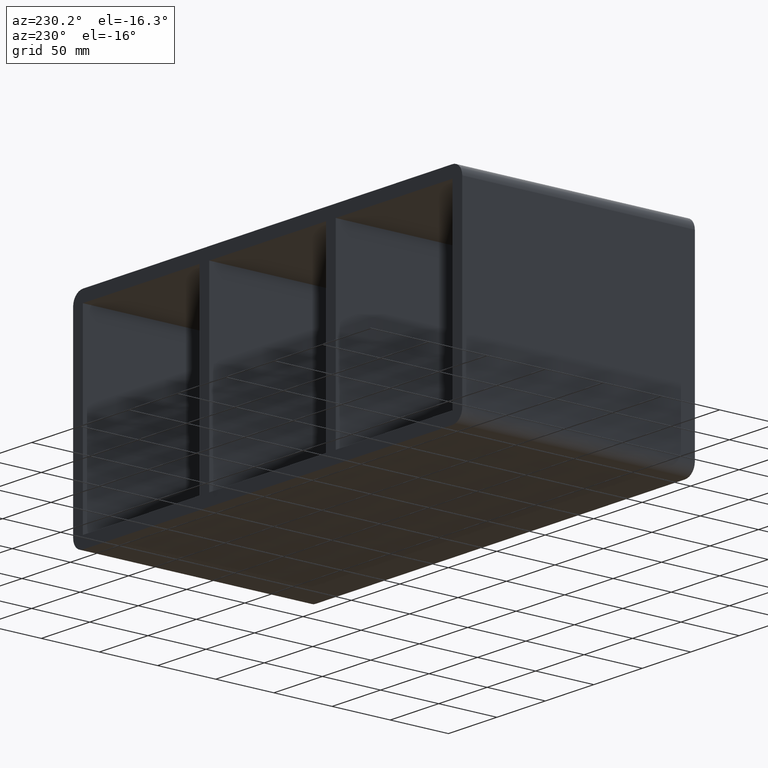
[diagram: clean part render]
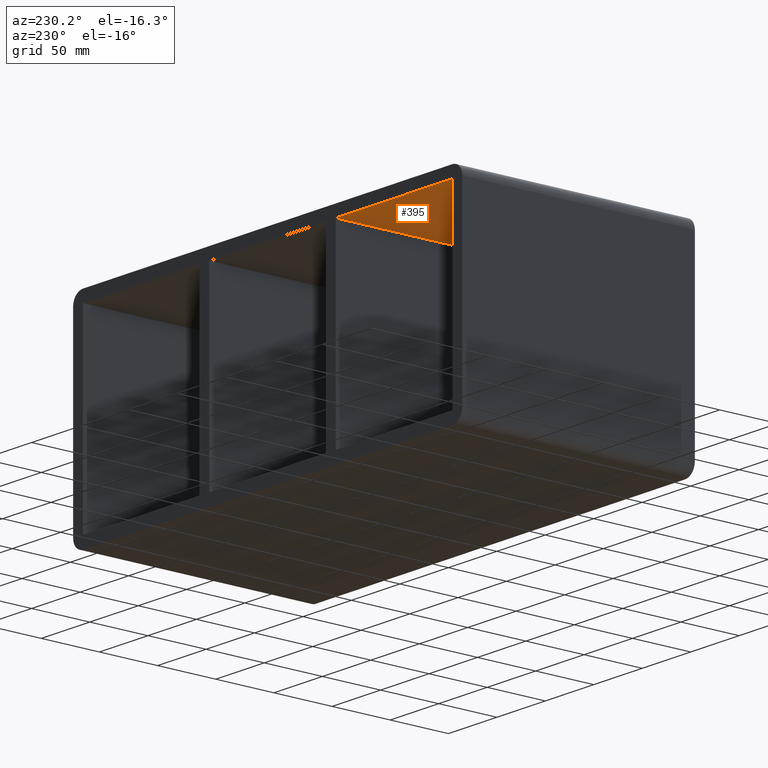
[diagram: same view with one face highlighted and labeled with its STEP entity id]
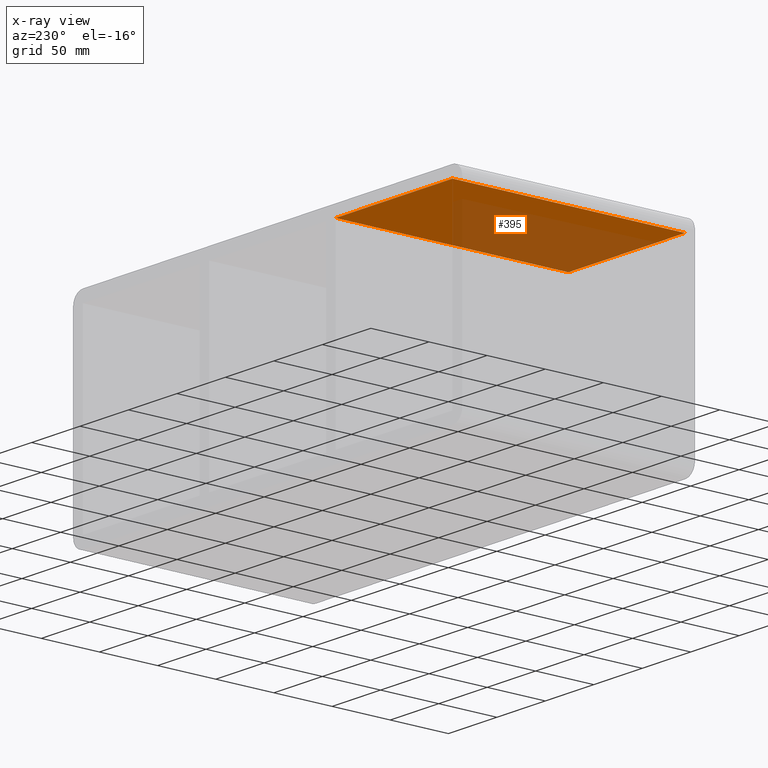
[diagram: x-ray of the same camera — body ghosted, the highlighted face saturated]
A machine part, auxiliary view. The second image highlights one B-rep face of the part: STEP entity #395.
The next image is the same camera in x-ray: the body ghosted, the highlighted face saturated — about 51% of this face is hidden behind the body in this view.
In plain terms, the highlighted planar face has unit normal (0, 0, 1).
Its self-contained STEP definition (entity closure, byte-faithful):
#279=CARTESIAN_POINT('',(-70.250000000001251,-3.0,79.750000000000028));
#280=VERTEX_POINT('',#279);
#287=CARTESIAN_POINT('',(-70.250000000001251,197.0,79.750000000000028));
#288=VERTEX_POINT('',#287);
#289=CARTESIAN_POINT('',(-70.250000000001251,196.99999999999997,79.750000000000028));
#290=DIRECTION('',(0.0,-1.0,0.0));
#291=VECTOR('',#290,199.99999999999997);
#292=LINE('',#289,#291);
#293=EDGE_CURVE('',#288,#280,#292,.T.);
#365=CARTESIAN_POINT('',(-190.75000000000003,0.0,79.750000000000028));
#366=DIRECTION('',(0.0,0.0,1.0));
#367=DIRECTION('',(1.0,0.0,0.0));
#368=AXIS2_PLACEMENT_3D('',#365,#366,#367);
#369=PLANE('',#368);
#370=ORIENTED_EDGE('',*,*,#293,.T.);
#371=CARTESIAN_POINT('',(-190.75,-3.0,79.750000000000028));
#372=VERTEX_POINT('',#371);
#373=CARTESIAN_POINT('',(-190.75,-3.0,79.750000000000028));
#374=DIRECTION('',(1.0,0.0,0.0));
#375=VECTOR('',#374,120.49999999999875);
#376=LINE('',#373,#375);
#377=EDGE_CURVE('',#372,#280,#376,.T.);
#378=ORIENTED_EDGE('',*,*,#377,.F.);
#379=CARTESIAN_POINT('',(-190.75,197.0,79.750000000000028));
#380=VERTEX_POINT('',#379);
#381=CARTESIAN_POINT('',(-190.75000000000003,-3.0,79.750000000000028));
#382=DIRECTION('',(0.0,1.0,0.0));
#383=VECTOR('',#382,200.0);
#384=LINE('',#381,#383);
#385=EDGE_CURVE('',#372,#380,#384,.T.);
#386=ORIENTED_EDGE('',*,*,#385,.T.);
#387=CARTESIAN_POINT('',(-70.250000000001251,197.0,79.750000000000028));
#388=DIRECTION('',(-1.0,0.0,0.0));
#389=VECTOR('',#388,120.49999999999875);
#390=LINE('',#387,#389);
#391=EDGE_CURVE('',#288,#380,#390,.T.);
#392=ORIENTED_EDGE('',*,*,#391,.F.);
#393=EDGE_LOOP('',(#370,#378,#386,#392));
#394=FACE_OUTER_BOUND('',#393,.T.);
#395=ADVANCED_FACE('',(#394),#369,.F.);